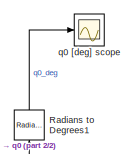
[diagram: root canvas - part 1/2, top center region]
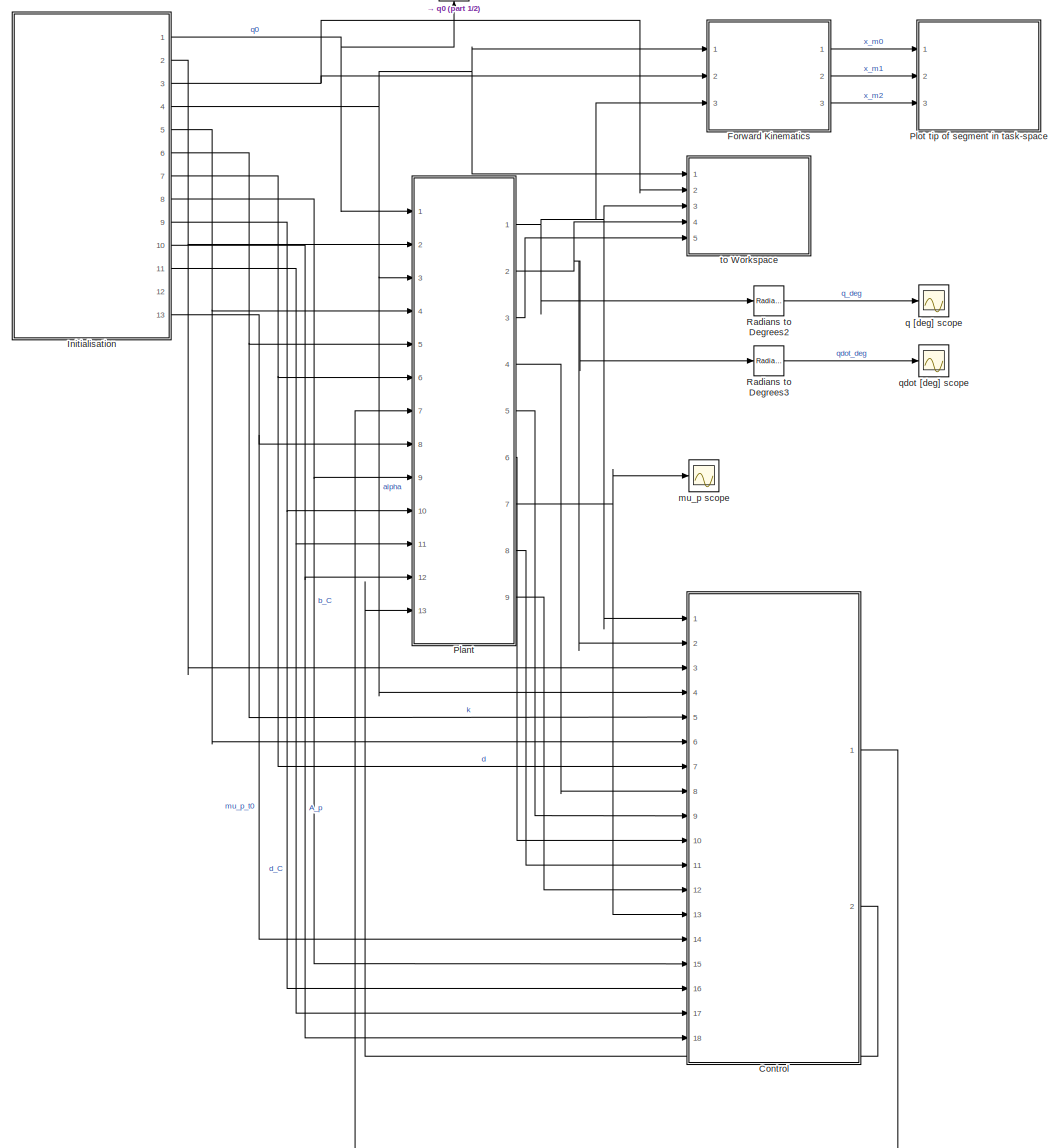
[diagram: root canvas - part 2/2, most of the canvas]
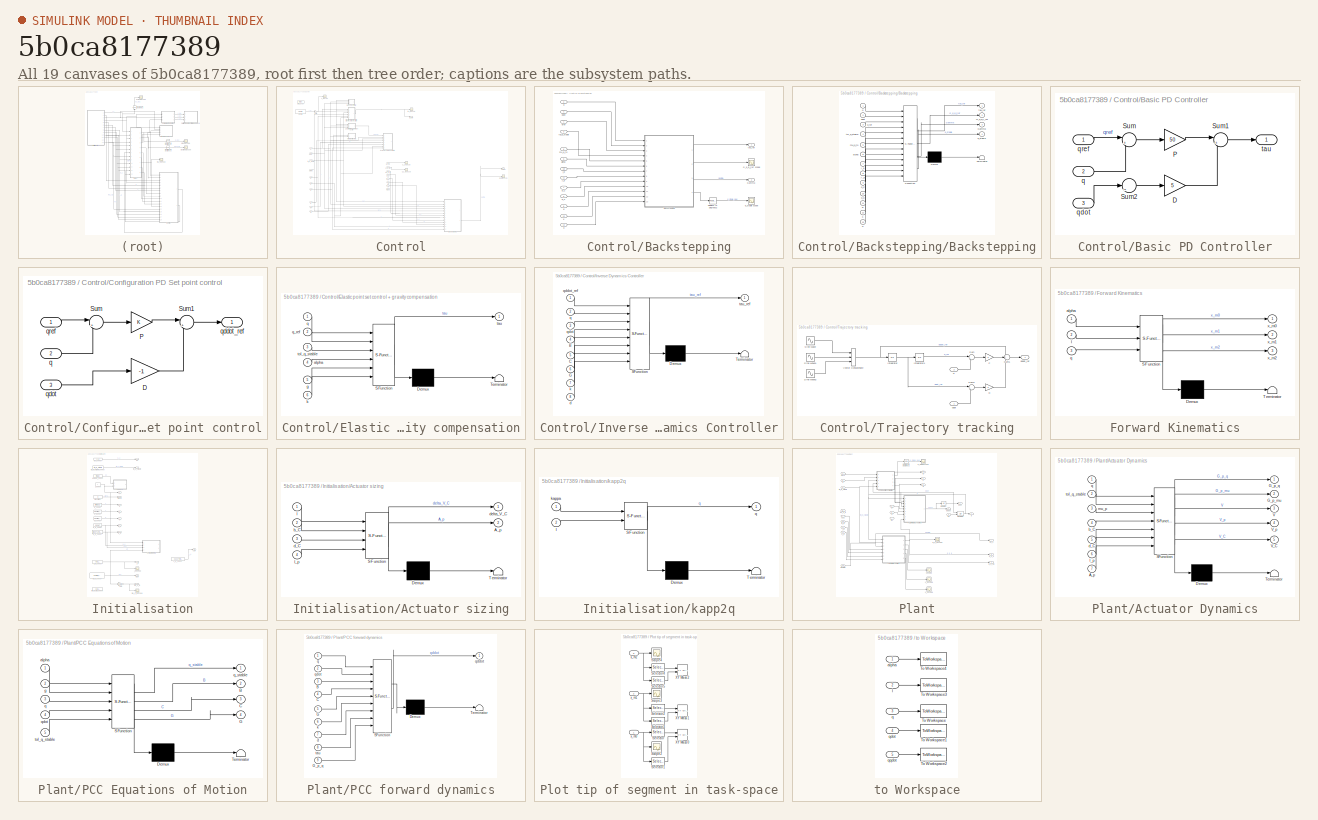
[diagram: thumbnail index - all 19 canvases of the model, root first then tree order]
MODEL slx_5b0ca8177389
KIND model
CONFIG AbsTol = auto
CONFIG EnableMultiTasking = off
CONFIG FixedStep = auto
CONFIG MaxStep = 0.001
CONFIG MinStep = auto
CONFIG RelTol = 1e-3
CONFIG SampleTimeConstraint = Unconstrained
CONFIG SolverName = VariableStepAuto
CONFIG StartTime = 0.0
CONFIG StopTime = 70
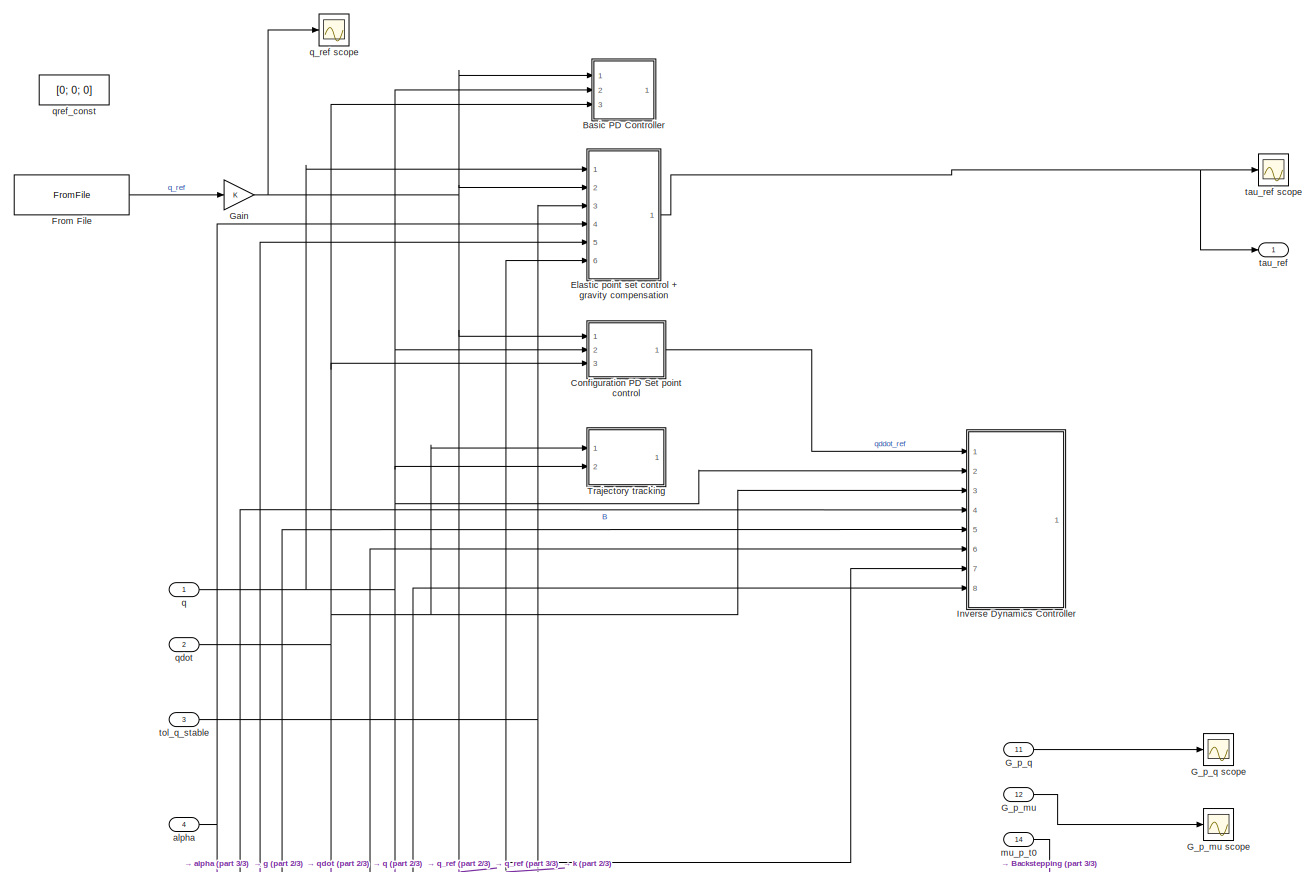
[diagram: Control - part 1/3, top left region]
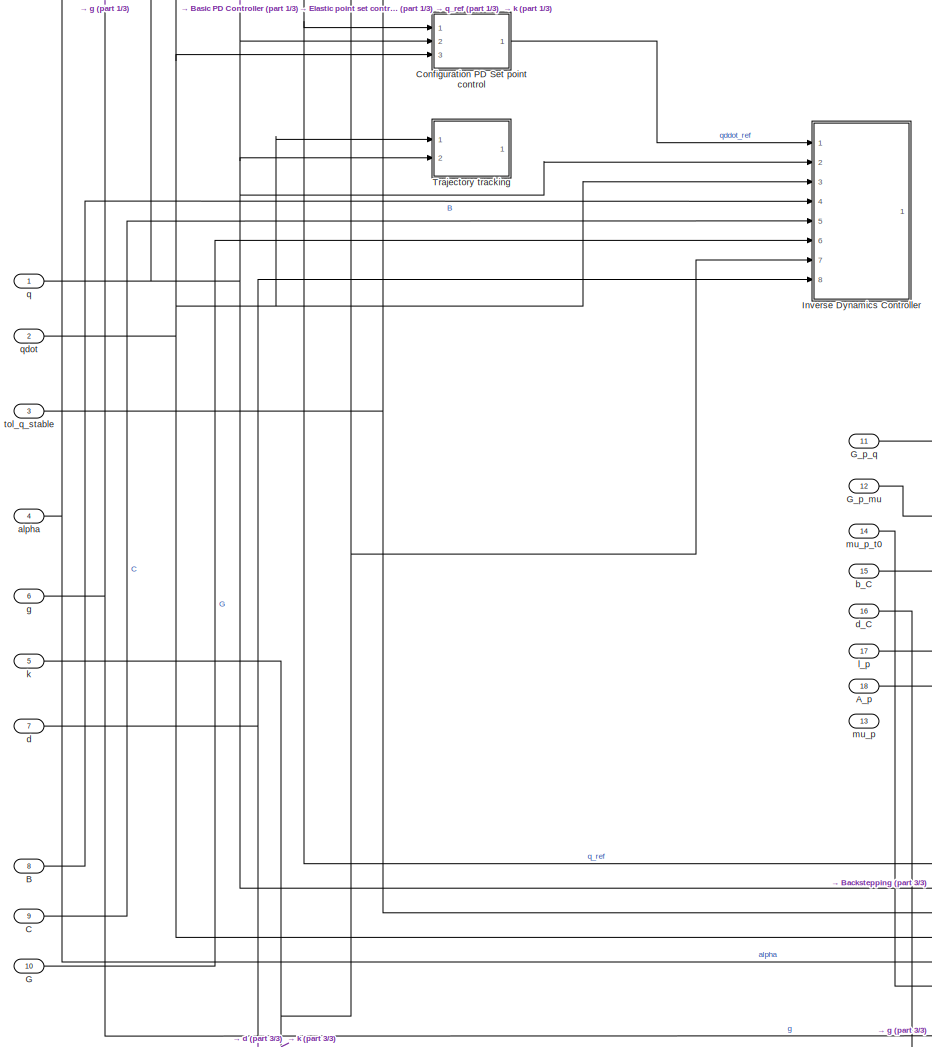
[diagram: Control - part 2/3, middle left region]
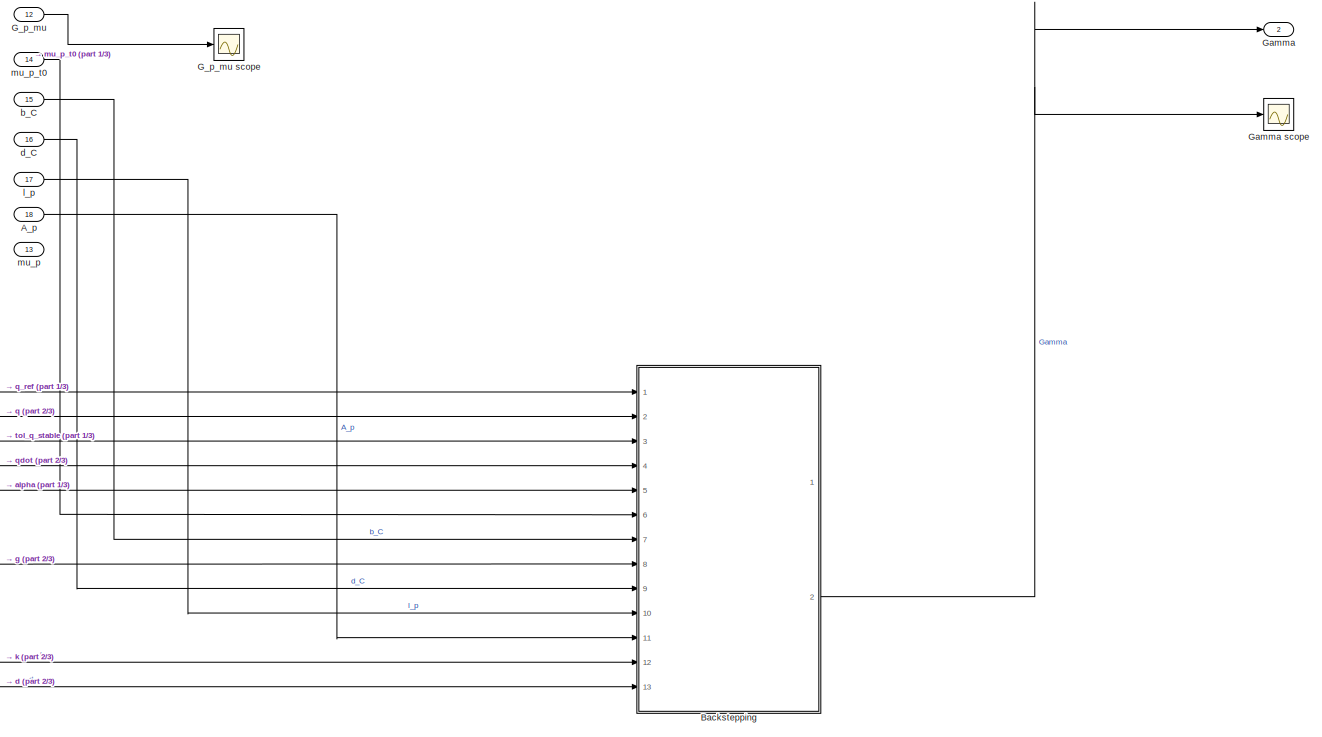
[diagram: Control - part 3/3, bottom right region]
BLOCK [SubSystem] Control
  Ports = [18, 2]
  RequestExecContextInheritance = off
BLOCK [Inport] Control/A_p
  Port = 18
BLOCK [Inport] Control/B
  Port = 8
BLOCK [SubSystem] Control/Backstepping
  Ports = [13, 2]
  RequestExecContextInheritance = off
BLOCK [Inport] Control/Backstepping/A_p
  Port = 11
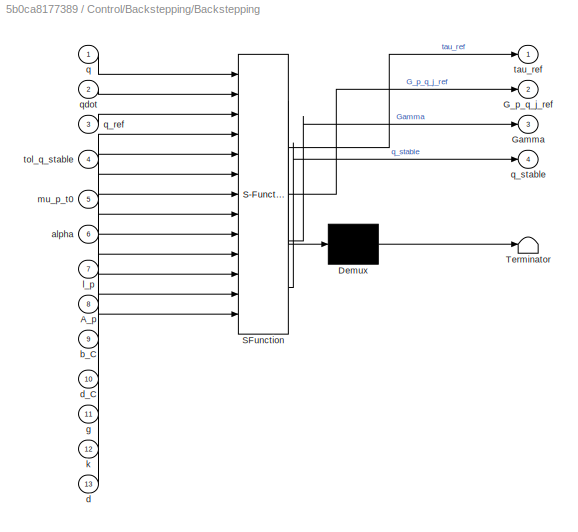
BLOCK [SubSystem] Control/Backstepping/Backstepping
  ErrorFcn = Stateflow.Translate.translate
  PermitHierarchicalResolution = ExplicitOnly
  Ports = [13, 4]
  RTWSystemCode = Reusable function
  RequestExecContextInheritance = off
  SFBlockType = MATLAB Function
  TreatAsAtomicUnit = on
BLOCK [Demux] Control/Backstepping/Backstepping/ Demux 
  Outputs = 1
  Ports = [1, 1]
BLOCK [S-Function] Control/Backstepping/Backstepping/ SFunction 
  EnableBusSupport = on
  FunctionName = sf_sfun
  PortCounts = [13 5]
  Ports = [13, 5]
  SFcnIsStateOwnerBlock = off
  SFunctionDeploymentMode = off
  Tag = Stateflow S-Function 12
BLOCK [Terminator] Control/Backstepping/Backstepping/ Terminator 
BLOCK [Inport] Control/Backstepping/Backstepping/A_p
  Port = 8
BLOCK [Outport] Control/Backstepping/Backstepping/G_p_q_j_ref
  Port = 2
BLOCK [Outport] Control/Backstepping/Backstepping/Gamma
  Port = 3
BLOCK [Inport] Control/Backstepping/Backstepping/alpha
  Port = 6
BLOCK [Inport] Control/Backstepping/Backstepping/b_C
  Port = 9
BLOCK [Inport] Control/Backstepping/Backstepping/d
  Port = 13
BLOCK [Inport] Control/Backstepping/Backstepping/d_C
  Port = 10
BLOCK [Inport] Control/Backstepping/Backstepping/g
  Port = 11
BLOCK [Inport] Control/Backstepping/Backstepping/k
  Port = 12
BLOCK [Inport] Control/Backstepping/Backstepping/l_p
  Port = 7
BLOCK [Inport] Control/Backstepping/Backstepping/mu_p_t0
  Port = 5
BLOCK [Inport] Control/Backstepping/Backstepping/q
BLOCK [Inport] Control/Backstepping/Backstepping/q_ref
  Port = 3
BLOCK [Outport] Control/Backstepping/Backstepping/q_stable
  Port = 4
BLOCK [Inport] Control/Backstepping/Backstepping/qdot
  Port = 2
BLOCK [Outport] Control/Backstepping/Backstepping/tau_ref
BLOCK [Inport] Control/Backstepping/Backstepping/tol_q_stable
  Port = 4
BLOCK [Scope] Control/Backstepping/G_p_q_j_ref scope
  Floating = off
  NumInputPorts = 1
  Ports = [1]
  ScopeSpecificationString = Simulink.scopes.TimeScopeBlockCfg('CurrentConfiguration', extmgr.ConfigurationSet(extmgr.Configuration('Core','General UI',true),extmgr.Configuration('Core','Source UI',true),extmgr.Configuration('Sources','WiredSimulink',true,'DataLoggingVariableName','ScopeData4'),extmgr.Configuration('Visuals','Time Domain',true,'SerializedDisplays',{struct('MinYLimReal','-1.41052','MaxYLimReal','0.97367','YLab...<+1602ch>
BLOCK [Outport] Control/Backstepping/Gamma
  Port = 2
BLOCK [Reference] Control/Backstepping/Radians to Degrees2  REF=simulink_extras/Transformations/Radians
to Degrees
  Ports = [1, 1]
  SourceBlock = simulink_extras/Transformations/Radians\nto Degrees
  SourceProductBaseCode = SL
  SourceType = RadiansToDegrees
BLOCK [Inport] Control/Backstepping/alpha
  Port = 5
BLOCK [Inport] Control/Backstepping/b_C
  Port = 7
BLOCK [Inport] Control/Backstepping/d
  Port = 13
BLOCK [Inport] Control/Backstepping/d_C
  Port = 9
BLOCK [Inport] Control/Backstepping/g
  Port = 8
BLOCK [Inport] Control/Backstepping/k
  Port = 12
BLOCK [Inport] Control/Backstepping/l_p
  Port = 10
BLOCK [Inport] Control/Backstepping/mu_p_t0
  Port = 6
BLOCK [Inport] Control/Backstepping/q
  Port = 2
BLOCK [Scope] Control/Backstepping/q_stable scope
  Floating = off
  NumInputPorts = 1
  Ports = [1]
  ScopeSpecificationString = Simulink.scopes.TimeScopeBlockCfg('CurrentConfiguration', extmgr.ConfigurationSet(extmgr.Configuration('Core','General UI',true),extmgr.Configuration('Core','Source UI',true),extmgr.Configuration('Sources','WiredSimulink',true,'DataLoggingVariableName','ScopeData1'),extmgr.Configuration('Visuals','Time Domain',true,'SerializedDisplays',{struct('MinYLimReal','-222.20709','MaxYLimReal','520.33624','...<+1493ch>
BLOCK [Inport] Control/Backstepping/qdot
  Port = 4
BLOCK [Inport] Control/Backstepping/qref
BLOCK [Outport] Control/Backstepping/tau_ref
BLOCK [Inport] Control/Backstepping/tol_q_stable
  Port = 3
BLOCK [SubSystem] Control/Basic PD Controller
  Commented = on
  Ports = [3, 1]
  RequestExecContextInheritance = off
BLOCK [Gain] Control/Basic PD Controller/D
  Gain = 5
BLOCK [Gain] Control/Basic PD Controller/P
  Gain = 50
BLOCK [Sum] Control/Basic PD Controller/Sum
  Inputs = |+-
  Ports = [2, 1]
BLOCK [Sum] Control/Basic PD Controller/Sum1
  Inputs = |++
  Ports = [2, 1]
BLOCK [Sum] Control/Basic PD Controller/Sum2
  Inputs = ||-
  Ports = [1, 1]
BLOCK [Inport] Control/Basic PD Controller/q
  Port = 2
BLOCK [Inport] Control/Basic PD Controller/qdot
  Port = 3
BLOCK [Inport] Control/Basic PD Controller/qref
BLOCK [Outport] Control/Basic PD Controller/tau
BLOCK [Inport] Control/C
  Port = 9
BLOCK [SubSystem] Control/Configuration PD Set point control
  Commented = on
  Ports = [3, 1]
  RequestExecContextInheritance = off
BLOCK [Gain] Control/Configuration PD Set point control/D
  Gain = -1
BLOCK [Gain] Control/Configuration PD Set point control/P
BLOCK [Sum] Control/Configuration PD Set point control/Sum
  Inputs = |+-
  Ports = [2, 1]
BLOCK [Sum] Control/Configuration PD Set point control/Sum1
  Inputs = |++
  Ports = [2, 1]
BLOCK [Inport] Control/Configuration PD Set point control/q
  Port = 2
BLOCK [Outport] Control/Configuration PD Set point control/qddot_ref
BLOCK [Inport] Control/Configuration PD Set point control/qdot
  Port = 3
BLOCK [Inport] Control/Configuration PD Set point control/qref
BLOCK [SubSystem] Control/Elastic point set control + gravity compensation
  ErrorFcn = Stateflow.Translate.translate
  PermitHierarchicalResolution = ExplicitOnly
  Ports = [6, 1]
  RequestExecContextInheritance = off
  SFBlockType = MATLAB Function
  TreatAsAtomicUnit = on
BLOCK [Demux] Control/Elastic point set control + gravity compensation/ Demux 
  Outputs = 1
  Ports = [1, 1]
BLOCK [S-Function] Control/Elastic point set control + gravity compensation/ SFunction 
  EnableBusSupport = on
  FunctionName = sf_sfun
  PortCounts = [6 2]
  Ports = [6, 2]
  SFcnIsStateOwnerBlock = off
  SFunctionDeploymentMode = off
  Tag = Stateflow S-Function 6
BLOCK [Terminator] Control/Elastic point set control + gravity compensation/ Terminator 
BLOCK [Inport] Control/Elastic point set control + gravity compensation/alpha
  Port = 4
BLOCK [Inport] Control/Elastic point set control + gravity compensation/g
  Port = 5
BLOCK [Inport] Control/Elastic point set control + gravity compensation/k
  Port = 6
BLOCK [Inport] Control/Elastic point set control + gravity compensation/q
BLOCK [Inport] Control/Elastic point set control + gravity compensation/q_ref
  Port = 2
BLOCK [Outport] Control/Elastic point set control + gravity compensation/tau
BLOCK [Inport] Control/Elastic point set control + gravity compensation/tol_q_stable
  Port = 3
BLOCK [FromFile] Control/From File
  FileName = data\in_qref_ts.mat
  InterpolationWithinTimeRange = Zero order hold
  SampleTime = 0
BLOCK [Inport] Control/G
  Port = 10
BLOCK [Inport] Control/G_p_mu
  Port = 12
BLOCK [Scope] Control/G_p_mu scope
  Floating = off
  NumInputPorts = 1
  Ports = [1]
  ScopeSpecificationString = Simulink.scopes.TimeScopeBlockCfg('CurrentConfiguration', extmgr.ConfigurationSet(extmgr.Configuration('Core','General UI',true),extmgr.Configuration('Core','Source UI',true),extmgr.Configuration('Sources','WiredSimulink',true,'DataLoggingVariableName','ScopeData3'),extmgr.Configuration('Visuals','Time Domain',true,'SerializedDisplays',{struct('MinYLimReal','-300.6051','MaxYLimReal','95.99191','YL...<+1621ch>
BLOCK [Inport] Control/G_p_q
  Port = 11
BLOCK [Scope] Control/G_p_q scope
  Floating = off
  NumInputPorts = 1
  Ports = [1]
  ScopeSpecificationString = Simulink.scopes.TimeScopeBlockCfg('CurrentConfiguration', extmgr.ConfigurationSet(extmgr.Configuration('Core','General UI',true),extmgr.Configuration('Core','Source UI',true),extmgr.Configuration('Sources','WiredSimulink',true,'DataLoggingVariableName','ScopeData2'),extmgr.Configuration('Visuals','Time Domain',true,'SerializedDisplays',{struct('MinYLimReal','-20.65925','MaxYLimReal','11.64175','YL...<+1584ch>
BLOCK [Gain] Control/Gain
BLOCK [Outport] Control/Gamma
  Port = 2
BLOCK [Scope] Control/Gamma scope
  Floating = off
  NumInputPorts = 1
  Ports = [1]
  ScopeSpecificationString = Simulink.scopes.TimeScopeBlockCfg('CurrentConfiguration', extmgr.ConfigurationSet(extmgr.Configuration('Core','General UI',true),extmgr.Configuration('Core','Source UI',true),extmgr.Configuration('Sources','WiredSimulink',true,'DataLoggingVariableName','ScopeData3'),extmgr.Configuration('Visuals','Time Domain',true,'SerializedDisplays',{struct('MinYLimReal','0.04448','MaxYLimReal','0.22674','YLabe...<+1629ch>
BLOCK [SubSystem] Control/Inverse Dynamics Controller
  Commented = on
  ErrorFcn = Stateflow.Translate.translate
  PermitHierarchicalResolution = ExplicitOnly
  Ports = [8, 1]
  RequestExecContextInheritance = off
  SFBlockType = MATLAB Function
  TreatAsAtomicUnit = on
BLOCK [Demux] Control/Inverse Dynamics Controller/ Demux 
  Outputs = 1
  Ports = [1, 1]
BLOCK [S-Function] Control/Inverse Dynamics Controller/ SFunction 
  EnableBusSupport = on
  FunctionName = sf_sfun
  PortCounts = [8 2]
  Ports = [8, 2]
  SFcnIsStateOwnerBlock = off
  SFunctionDeploymentMode = off
  Tag = Stateflow S-Function 5
BLOCK [Terminator] Control/Inverse Dynamics Controller/ Terminator 
BLOCK [Inport] Control/Inverse Dynamics Controller/B
  Port = 4
BLOCK [Inport] Control/Inverse Dynamics Controller/C
  Port = 5
BLOCK [Inport] Control/Inverse Dynamics Controller/G
  Port = 6
BLOCK [Inport] Control/Inverse Dynamics Controller/d
  Port = 8
BLOCK [Inport] Control/Inverse Dynamics Controller/k
  Port = 7
BLOCK [Inport] Control/Inverse Dynamics Controller/q
  Port = 2
BLOCK [Inport] Control/Inverse Dynamics Controller/qddot_ref
BLOCK [Inport] Control/Inverse Dynamics Controller/qdot
  Port = 3
BLOCK [Outport] Control/Inverse Dynamics Controller/tau_ref
BLOCK [SubSystem] Control/Trajectory tracking
  Commented = on
  Ports = [2, 1]
  RequestExecContextInheritance = off
BLOCK [Gain] Control/Trajectory tracking/D
BLOCK [Integrator] Control/Trajectory tracking/Integrator
  InitialCondition = [-0.25, -0.5, -1]
  Ports = [1, 1]
BLOCK [Integrator] Control/Trajectory tracking/Integrator1
  Ports = [1, 1]
BLOCK [Gain] Control/Trajectory tracking/P
BLOCK [Sin] Control/Trajectory tracking/Sine Wave
  Amplitude = 0.25
  Ports = [0, 1]
  SampleTime = 0
  Samples = 100
BLOCK [Sin] Control/Trajectory tracking/Sine Wave1
  Amplitude = 0.5
  Ports = [0, 1]
  SampleTime = 0
BLOCK [Sin] Control/Trajectory tracking/Sine Wave2
  Ports = [0, 1]
  SampleTime = 0
BLOCK [Sum] Control/Trajectory tracking/Sum
  Inputs = |+-
  Ports = [2, 1]
BLOCK [Sum] Control/Trajectory tracking/Sum1
  Inputs = +++
  Ports = [3, 1]
BLOCK [Sum] Control/Trajectory tracking/Sum2
  Inputs = |+-
  Ports = [2, 1]
BLOCK [Concatenate] Control/Trajectory tracking/Vector Concatenate
  NumInputs = 3
  Ports = [3, 1]
BLOCK [Inport] Control/Trajectory tracking/q
  Port = 2
BLOCK [Outport] Control/Trajectory tracking/qddot_ref
BLOCK [Inport] Control/Trajectory tracking/qdot
BLOCK [Inport] Control/alpha
  Port = 4
BLOCK [Inport] Control/b_C
  Port = 15
BLOCK [Inport] Control/d
  Port = 7
BLOCK [Inport] Control/d_C
  Port = 16
BLOCK [Inport] Control/g
  Port = 6
BLOCK [Inport] Control/k
  Port = 5
BLOCK [Inport] Control/l_p
  Port = 17
BLOCK [Inport] Control/mu_p
  Port = 13
BLOCK [Inport] Control/mu_p_t0
  Port = 14
BLOCK [Inport] Control/q
BLOCK [Scope] Control/q_ref scope
  Floating = off
  NumInputPorts = 1
  Ports = [1]
  ScopeSpecificationString = Simulink.scopes.TimeScopeBlockCfg('CurrentConfiguration', extmgr.ConfigurationSet(extmgr.Configuration('Core','General UI',true),extmgr.Configuration('Core','Source UI',true),extmgr.Configuration('Sources','WiredSimulink',true,'DataLoggingVariableName','ScopeData2'),extmgr.Configuration('Visuals','Time Domain',true,'SerializedDisplays',{struct('MinYLimReal','-2.16748','MaxYLimReal','0.65777','YLab...<+1637ch>
BLOCK [Inport] Control/qdot
  Port = 2
BLOCK [Constant] Control/qref_const
  Value = [0; 0; 0]
BLOCK [Outport] Control/tau_ref
BLOCK [Scope] Control/tau_ref scope
  Floating = off
  NumInputPorts = 1
  Ports = [1]
  ScopeSpecificationString = Simulink.scopes.TimeScopeBlockCfg('CurrentConfiguration', extmgr.ConfigurationSet(extmgr.Configuration('Core','General UI',true),extmgr.Configuration('Core','Source UI',true),extmgr.Configuration('Sources','WiredSimulink',true,'DataLoggingVariableName','ScopeData4'),extmgr.Configuration('Visuals','Time Domain',true,'SerializedDisplays',{struct('MinYLimReal','-0.14254','MaxYLimReal','0.43804','YLab...<+1657ch>
BLOCK [Inport] Control/tol_q_stable
  Port = 3
BLOCK [SubSystem] Forward Kinematics
  ErrorFcn = Stateflow.Translate.translate
  PermitHierarchicalResolution = ExplicitOnly
  Ports = [3, 3]
  RequestExecContextInheritance = off
  SFBlockType = MATLAB Function
  TreatAsAtomicUnit = on
BLOCK [Demux] Forward Kinematics/ Demux 
  Outputs = 1
  Ports = [1, 1]
BLOCK [S-Function] Forward Kinematics/ SFunction 
  EnableBusSupport = on
  FunctionName = sf_sfun
  PortCounts = [3 4]
  Ports = [3, 4]
  SFcnIsStateOwnerBlock = off
  SFunctionDeploymentMode = off
  Tag = Stateflow S-Function 1
BLOCK [Terminator] Forward Kinematics/ Terminator 
BLOCK [Inport] Forward Kinematics/alpha
BLOCK [Inport] Forward Kinematics/l
  Port = 2
BLOCK [Inport] Forward Kinematics/q
  Port = 3
BLOCK [Outport] Forward Kinematics/x_m0
BLOCK [Outport] Forward Kinematics/x_m1
  Port = 2
BLOCK [Outport] Forward Kinematics/x_m2
  Port = 3
BLOCK [SubSystem] Initialisation
  Ports = [0, 13]
  RequestExecContextInheritance = off
BLOCK [Outport] Initialisation/A_p
  Port = 10
BLOCK [Constant] Initialisation/A_p_const
  Value = 0.00079*[1; 1; 1; 1; 1; 1]
BLOCK [SubSystem] Initialisation/Actuator sizing
  ErrorFcn = Stateflow.Translate.translate
  PermitHierarchicalResolution = ExplicitOnly
  Ports = [4, 2]
  RequestExecContextInheritance = off
  SFBlockType = MATLAB Function
  TreatAsAtomicUnit = on
BLOCK [Demux] Initialisation/Actuator sizing/ Demux 
  Outputs = 1
  Ports = [1, 1]
BLOCK [S-Function] Initialisation/Actuator sizing/ SFunction 
  EnableBusSupport = on
  FunctionName = sf_sfun
  PortCounts = [4 3]
  Ports = [4, 3]
  SFcnIsStateOwnerBlock = off
  SFunctionDeploymentMode = off
  Tag = Stateflow S-Function 8
BLOCK [Terminator] Initialisation/Actuator sizing/ Terminator 
BLOCK [Outport] Initialisation/Actuator sizing/A_p
  Port = 2
BLOCK [Inport] Initialisation/Actuator sizing/b_C
  Port = 2
BLOCK [Inport] Initialisation/Actuator sizing/d_C
  Port = 3
BLOCK [Outport] Initialisation/Actuator sizing/delta_V_C
BLOCK [Inport] Initialisation/Actuator sizing/l
BLOCK [Inport] Initialisation/Actuator sizing/l_p
  Port = 4
BLOCK [Gain] Initialisation/Gain
  Gain = 0.25
BLOCK [Outport] Initialisation/alpha
  Port = 4
BLOCK [Constant] Initialisation/alpha [rad]
  Value = 0
BLOCK [Outport] Initialisation/b_C
  Port = 8
BLOCK [Constant] Initialisation/b_C_const
  Value = 0.0087
BLOCK [Outport] Initialisation/d
  Port = 7
BLOCK [Outport] Initialisation/d_C
  Port = 9
BLOCK [Constant] Initialisation/d_C_const
  Value = [0.00714; 0.02019]
BLOCK [Constant] Initialisation/d_const
  Value = 0.01*[1; 1; 1]
BLOCK [Outport] Initialisation/g
  Port = 5
BLOCK [Constant] Initialisation/g_const
  Value = 1*[0; 9.81]
BLOCK [Outport] Initialisation/k
  Port = 6
BLOCK [Constant] Initialisation/k_konst
  Value = 0.01*[1; 1; 1]
BLOCK [SubSystem] Initialisation/kapp2q
  Commented = on
  ErrorFcn = Stateflow.Translate.translate
  PermitHierarchicalResolution = ExplicitOnly
  Ports = [2, 1]
  RequestExecContextInheritance = off
  SFBlockType = MATLAB Function
  TreatAsAtomicUnit = on
BLOCK [Demux] Initialisation/kapp2q/ Demux 
  Outputs = 1
  Ports = [1, 1]
BLOCK [S-Function] Initialisation/kapp2q/ SFunction 
  EnableBusSupport = on
  FunctionName = sf_sfun
  PortCounts = [2 2]
  Ports = [2, 2]
  SFcnIsStateOwnerBlock = off
  SFunctionDeploymentMode = off
  Tag = Stateflow S-Function 3
BLOCK [Terminator] Initialisation/kapp2q/ Terminator 
BLOCK [Inport] Initialisation/kapp2q/kappa
BLOCK [Inport] Initialisation/kapp2q/l
  Port = 2
BLOCK [Outport] Initialisation/kapp2q/q
BLOCK [Constant] Initialisation/kappa_const
  Commented = on
  Value = [4; -3; 2]
BLOCK [Outport] Initialisation/l
  Port = 3
BLOCK [Constant] Initialisation/l_const
  Value = l
BLOCK [Outport] Initialisation/l_p
  Port = 11
BLOCK [Scope] Initialisation/l_p Scope
  Floating = off
  NumInputPorts = 1
  Ports = [1]
  ScopeSpecificationString = Simulink.scopes.TimeScopeBlockCfg('CurrentConfiguration', extmgr.ConfigurationSet(extmgr.Configuration('Core','General UI',true),extmgr.Configuration('Core','Source UI',true),extmgr.Configuration('Sources','WiredSimulink',true,'DataLoggingVariableName','ScopeData2'),extmgr.Configuration('Visuals','Time Domain',true,'SerializedDisplays',{struct('MinYLimReal','0.09','MaxYLimReal','0.11','YLabelReal'...<+1682ch>
BLOCK [Constant] Initialisation/l_p_const
  Value = 0.5*[1; 1; 1; 1; 1; 1]
BLOCK [Outport] Initialisation/m_p
  Port = 12
BLOCK [Constant] Initialisation/m_p_const
  Value = 0.19*[1; 1; 1; 1; 1; 1]
BLOCK [Outport] Initialisation/mu_p_t0
  Port = 13
BLOCK [Scope] Initialisation/mu_p_t0 Scope
  Floating = off
  NumInputPorts = 1
  Ports = [1]
  ScopeSpecificationString = Simulink.scopes.TimeScopeBlockCfg('CurrentConfiguration', extmgr.ConfigurationSet(extmgr.Configuration('Core','General UI',true),extmgr.Configuration('Core','Source UI',true),extmgr.Configuration('Sources','WiredSimulink',true,'DataLoggingVariableName','ScopeData1'),extmgr.Configuration('Visuals','Time Domain',true,'SerializedDisplays',{struct('MinYLimReal','0.07','MaxYLimReal','0.09','YLabelReal'...<+1687ch>
BLOCK [Constant] Initialisation/mu_p_t0_const
  Value = 0.2*[1; 1; 1; 1; 1; 1]
BLOCK [Outport] Initialisation/q0
BLOCK [Constant] Initialisation/q0_const
  Value = q_eq
BLOCK [Outport] Initialisation/tol_q_stable
  Port = 2
BLOCK [Constant] Initialisation/tol_q_stable_const
  Value = tol_q_stable
BLOCK [SubSystem] Plant
  Ports = [13, 9]
  RequestExecContextInheritance = off
BLOCK [Inport] Plant/A_p
  Port = 12
BLOCK [SubSystem] Plant/Actuator Dynamics
  ErrorFcn = Stateflow.Translate.translate
  PermitHierarchicalResolution = ExplicitOnly
  Ports = [7, 5]
  RequestExecContextInheritance = off
  SFBlockType = MATLAB Function
  TreatAsAtomicUnit = on
BLOCK [Demux] Plant/Actuator Dynamics/ Demux 
  Outputs = 1
  Ports = [1, 1]
BLOCK [S-Function] Plant/Actuator Dynamics/ SFunction 
  EnableBusSupport = on
  FunctionName = sf_sfun
  PortCounts = [7 6]
  Ports = [7, 6]
  SFcnIsStateOwnerBlock = off
  SFunctionDeploymentMode = off
  Tag = Stateflow S-Function 7
BLOCK [Terminator] Plant/Actuator Dynamics/ Terminator 
BLOCK [Inport] Plant/Actuator Dynamics/A_p
  Port = 7
BLOCK [Outport] Plant/Actuator Dynamics/G_p_mu
  Port = 2
BLOCK [Outport] Plant/Actuator Dynamics/G_p_q
BLOCK [Outport] Plant/Actuator Dynamics/V
  Port = 3
BLOCK [Outport] Plant/Actuator Dynamics/V_C
  Port = 5
BLOCK [Outport] Plant/Actuator Dynamics/V_p
  Port = 4
BLOCK [Inport] Plant/Actuator Dynamics/b_C
  Port = 4
BLOCK [Inport] Plant/Actuator Dynamics/d_C
  Port = 5
BLOCK [Inport] Plant/Actuator Dynamics/l_p
  Port = 6
BLOCK [Inport] Plant/Actuator Dynamics/mu_p
  Port = 3
BLOCK [Inport] Plant/Actuator Dynamics/q
BLOCK [Inport] Plant/Actuator Dynamics/tol_q_stable
  Port = 2
BLOCK [Outport] Plant/B
  Port = 4
BLOCK [Outport] Plant/C
  Port = 5
BLOCK [Outport] Plant/G
  Port = 6
BLOCK [Outport] Plant/G_p_mu
  Port = 9
BLOCK [Outport] Plant/G_p_q
  Port = 8
BLOCK [Scope] Plant/G_p_q scope
  Floating = off
  NumInputPorts = 1
  Ports = [1]
  ScopeSpecificationString = Simulink.scopes.TimeScopeBlockCfg('CurrentConfiguration', extmgr.ConfigurationSet(extmgr.Configuration('Core','General UI',true),extmgr.Configuration('Core','Source UI',true),extmgr.Configuration('Sources','WiredSimulink',true,'DataLoggingVariableName','ScopeData1'),extmgr.Configuration('Visuals','Time Domain',true,'SerializedDisplays',{struct('MinYLimReal','-0.43557','MaxYLimReal','0.1989','YLabe...<+1527ch>
BLOCK [Inport] Plant/Gamma
  Port = 13
BLOCK [Integrator] Plant/Integrator
  InitialCondition = [0; 0; 0]
  Ports = [1, 1]
BLOCK [Integrator] Plant/Integrator1
  InitialConditionSource = external
  Ports = [2, 1]
BLOCK [SubSystem] Plant/PCC Equations of Motion
  ErrorFcn = Stateflow.Translate.translate
  PermitHierarchicalResolution = ExplicitOnly
  Ports = [5, 4]
  RequestExecContextInheritance = off
  SFBlockType = MATLAB Function
  TreatAsAtomicUnit = on
BLOCK [Demux] Plant/PCC Equations of Motion/ Demux 
  Outputs = 1
  Ports = [1, 1]
BLOCK [S-Function] Plant/PCC Equations of Motion/ SFunction 
  EnableBusSupport = on
  FunctionName = sf_sfun
  PortCounts = [5 5]
  Ports = [5, 5]
  SFcnIsStateOwnerBlock = off
  SFunctionDeploymentMode = off
  Tag = Stateflow S-Function 4
BLOCK [Terminator] Plant/PCC Equations of Motion/ Terminator 
BLOCK [Outport] Plant/PCC Equations of Motion/B
  Port = 2
BLOCK [Outport] Plant/PCC Equations of Motion/C
  Port = 3
BLOCK [Outport] Plant/PCC Equations of Motion/G
  Port = 4
BLOCK [Inport] Plant/PCC Equations of Motion/alpha
BLOCK [Inport] Plant/PCC Equations of Motion/g
  Port = 2
BLOCK [Inport] Plant/PCC Equations of Motion/q
  Port = 3
BLOCK [Outport] Plant/PCC Equations of Motion/q_stable
BLOCK [Inport] Plant/PCC Equations of Motion/qdot
  Port = 4
BLOCK [Inport] Plant/PCC Equations of Motion/tol_q_stable
  Port = 5
BLOCK [SubSystem] Plant/PCC forward dynamics
  ErrorFcn = Stateflow.Translate.translate
  PermitHierarchicalResolution = ExplicitOnly
  Ports = [9, 1]
  RequestExecContextInheritance = off
  SFBlockType = MATLAB Function
  TreatAsAtomicUnit = on
BLOCK [Demux] Plant/PCC forward dynamics/ Demux 
  Outputs = 1
  Ports = [1, 1]
BLOCK [S-Function] Plant/PCC forward dynamics/ SFunction 
  EnableBusSupport = on
  FunctionName = sf_sfun
  PortCounts = [9 2]
  Ports = [9, 2]
  SFcnIsStateOwnerBlock = off
  SFunctionDeploymentMode = off
  Tag = Stateflow S-Function 2
BLOCK [Terminator] Plant/PCC forward dynamics/ Terminator 
BLOCK [Inport] Plant/PCC forward dynamics/B
  Port = 3
BLOCK [Inport] Plant/PCC forward dynamics/C
  Port = 4
BLOCK [Inport] Plant/PCC forward dynamics/G
  Port = 5
BLOCK [Inport] Plant/PCC forward dynamics/G_p_q
  Port = 9
BLOCK [Inport] Plant/PCC forward dynamics/d
  Port = 7
BLOCK [Inport] Plant/PCC forward dynamics/k
  Port = 6
BLOCK [Inport] Plant/PCC forward dynamics/q
BLOCK [Outport] Plant/PCC forward dynamics/qddot
BLOCK [Inport] Plant/PCC forward dynamics/qdot
  Port = 2
BLOCK [Inport] Plant/PCC forward dynamics/tau
  Port = 8
BLOCK [Reference] Plant/Radians to Degrees2  REF=simulink_extras/Transformations/Radians
to Degrees
  Ports = [1, 1]
  SourceBlock = simulink_extras/Transformations/Radians\nto Degrees
  SourceProductBaseCode = SL
  SourceType = RadiansToDegrees
BLOCK [Scope] Plant/V scope
  Floating = off
  NumInputPorts = 1
  Ports = [1]
  ScopeSpecificationString = Simulink.scopes.TimeScopeBlockCfg('CurrentConfiguration', extmgr.ConfigurationSet(extmgr.Configuration('Core','General UI',true),extmgr.Configuration('Core','Source UI',true),extmgr.Configuration('Sources','WiredSimulink',true,'DataLoggingVariableName','ScopeData2'),extmgr.Configuration('Visuals','Time Domain',true,'SerializedDisplays',{struct('MinYLimReal','0.00007','MaxYLimReal','0.00018','YLabe...<+1706ch>
BLOCK [Scope] Plant/V_C scope
  Floating = off
  NumInputPorts = 1
  Ports = [1]
  ScopeSpecificationString = Simulink.scopes.TimeScopeBlockCfg('CurrentConfiguration', extmgr.ConfigurationSet(extmgr.Configuration('Core','General UI',true),extmgr.Configuration('Core','Source UI',true),extmgr.Configuration('Sources','WiredSimulink',true,'DataLoggingVariableName','ScopeData4'),extmgr.Configuration('Visuals','Time Domain',true,'SerializedDisplays',{struct('MinYLimReal','-0.00004','MaxYLimReal','0.00006','YLab...<+1701ch>
BLOCK [Scope] Plant/V_p scope
  Floating = off
  NumInputPorts = 1
  Ports = [1]
  ScopeSpecificationString = Simulink.scopes.TimeScopeBlockCfg('CurrentConfiguration', extmgr.ConfigurationSet(extmgr.Configuration('Core','General UI',true),extmgr.Configuration('Core','Source UI',true),extmgr.Configuration('Sources','WiredSimulink',true,'DataLoggingVariableName','ScopeData3'),extmgr.Configuration('Visuals','Time Domain',true,'SerializedDisplays',{struct('MinYLimReal','0.00006','MaxYLimReal','0.00016','YLabe...<+1701ch>
BLOCK [Inport] Plant/alpha
  Port = 3
BLOCK [Inport] Plant/b_C
  Port = 9
BLOCK [Inport] Plant/d
  Port = 6
BLOCK [Inport] Plant/d_C
  Port = 10
BLOCK [Inport] Plant/g
  Port = 4
BLOCK [Inport] Plant/k
  Port = 5
BLOCK [Inport] Plant/l_p
  Port = 11
BLOCK [Outport] Plant/mu_p
  Port = 7
BLOCK [Inport] Plant/mu_p_t0
  Port = 8
BLOCK [Outport] Plant/q
BLOCK [Inport] Plant/q0
BLOCK [Scope] Plant/q_stable scope
  Floating = off
  NumInputPorts = 1
  Ports = [1]
  ScopeSpecificationString = Simulink.scopes.TimeScopeBlockCfg('CurrentConfiguration', extmgr.ConfigurationSet(extmgr.Configuration('Core','General UI',true),extmgr.Configuration('Core','Source UI',true),extmgr.Configuration('Sources','WiredSimulink',true,'DataLoggingVariableName','ScopeData6'),extmgr.Configuration('Visuals','Time Domain',true,'SerializedDisplays',{struct('MinYLimReal','-124.1875','MaxYLimReal','37.6875','YLa...<+1578ch>
BLOCK [Outport] Plant/qddot
  Port = 3
BLOCK [Outport] Plant/qdot
  Port = 2
BLOCK [Inport] Plant/tau
  Port = 7
BLOCK [Inport] Plant/tol_q_stable
  Port = 2
BLOCK [SubSystem] Plot tip of segment in task-space
  Ports = [3]
  RequestExecContextInheritance = off
BLOCK [Scope] Plot tip of segment in task-space/Scope2
  Floating = off
  NumInputPorts = 1
  Ports = [1]
  ScopeSpecificationString = Simulink.scopes.TimeScopeBlockCfg('CurrentConfiguration', extmgr.ConfigurationSet(extmgr.Configuration('Core','General UI',true),extmgr.Configuration('Core','Source UI',true),extmgr.Configuration('Sources','WiredSimulink',true,'DataLoggingVariableName','ScopeData1'),extmgr.Configuration('Visuals','Time Domain',true,'SerializedDisplays',{struct('MinYLimReal','-0.51135','MaxYLimReal','5.59884','YLab...<+1440ch>
BLOCK [Scope] Plot tip of segment in task-space/Scope3
  Floating = off
  NumInputPorts = 1
  Ports = [1]
  ScopeSpecificationString = Simulink.scopes.TimeScopeBlockCfg('CurrentConfiguration', extmgr.ConfigurationSet(extmgr.Configuration('Core','General UI',true),extmgr.Configuration('Core','Source UI',true),extmgr.Configuration('Sources','WiredSimulink',true,'DataLoggingVariableName','ScopeData1'),extmgr.Configuration('Visuals','Time Domain',true,'SerializedDisplays',{struct('MinYLimReal','-0.89914','MaxYLimReal','6.02375','YLab...<+1441ch>
BLOCK [Scope] Plot tip of segment in task-space/Scope4
  Floating = off
  NumInputPorts = 1
  Ports = [1]
  ScopeSpecificationString = Simulink.scopes.TimeScopeBlockCfg('CurrentConfiguration', extmgr.ConfigurationSet(extmgr.Configuration('Core','General UI',true),extmgr.Configuration('Core','Source UI',true),extmgr.Configuration('Sources','WiredSimulink',true,'DataLoggingVariableName','ScopeData2'),extmgr.Configuration('Visuals','Time Domain',true,'SerializedDisplays',{struct('MinYLimReal','-0.09267','MaxYLimReal','3.32699','YLab...<+1402ch>
BLOCK [Selector] Plot tip of segment in task-space/Selector
  IndexOptions = Index vector (dialog)
  Indices = [1]
  InputPortWidth = 2
  OutputSizes = 1
  Ports = [1, 1]
BLOCK [Selector] Plot tip of segment in task-space/Selector1
  IndexOptions = Index vector (dialog)
  Indices = [2]
  InputPortWidth = 2
  OutputSizes = 1
  Ports = [1, 1]
BLOCK [Selector] Plot tip of segment in task-space/Selector2
  IndexOptions = Index vector (dialog)
  Indices = [1]
  InputPortWidth = 2
  OutputSizes = 1
  Ports = [1, 1]
BLOCK [Selector] Plot tip of segment in task-space/Selector3
  IndexOptions = Index vector (dialog)
  Indices = [2]
  InputPortWidth = 2
  OutputSizes = 1
  Ports = [1, 1]
BLOCK [Selector] Plot tip of segment in task-space/Selector4
  IndexOptions = Index vector (dialog)
  Indices = [1]
  InputPortWidth = 2
  OutputSizes = 1
  Ports = [1, 1]
BLOCK [Selector] Plot tip of segment in task-space/Selector5
  IndexOptions = Index vector (dialog)
  Indices = [2]
  InputPortWidth = 2
  OutputSizes = 1
  Ports = [1, 1]
BLOCK [Reference] Plot tip of segment in task-space/XY Mass 0  REF=simulink/Sinks/XY Graph
  Ports = [2]
  SourceBlock = simulink/Sinks/XY Graph
  SourceProductBaseCode = SL
  SourceType = XY scope.
BLOCK [Reference] Plot tip of segment in task-space/XY Mass 1  REF=simulink/Sinks/XY Graph
  Ports = [2]
  SourceBlock = simulink/Sinks/XY Graph
  SourceProductBaseCode = SL
  SourceType = XY scope.
BLOCK [Reference] Plot tip of segment in task-space/XY Mass 2  REF=simulink/Sinks/XY Graph
  Ports = [2]
  SourceBlock = simulink/Sinks/XY Graph
  SourceProductBaseCode = SL
  SourceType = XY scope.
BLOCK [Inport] Plot tip of segment in task-space/x_m0
BLOCK [Inport] Plot tip of segment in task-space/x_m1
  Port = 2
BLOCK [Inport] Plot tip of segment in task-space/x_m2
  Port = 3
BLOCK [Reference] Radians to Degrees1  REF=simulink_extras/Transformations/Radians
to Degrees
  NameLocation = right
  Ports = [1, 1]
  SourceBlock = simulink_extras/Transformations/Radians\nto Degrees
  SourceProductBaseCode = SL
  SourceType = RadiansToDegrees
BLOCK [Reference] Radians to Degrees2  REF=simulink_extras/Transformations/Radians
to Degrees
  Ports = [1, 1]
  SourceBlock = simulink_extras/Transformations/Radians\nto Degrees
  SourceProductBaseCode = SL
  SourceType = RadiansToDegrees
BLOCK [Reference] Radians to Degrees3  REF=simulink_extras/Transformations/Radians
to Degrees
  Ports = [1, 1]
  SourceBlock = simulink_extras/Transformations/Radians\nto Degrees
  SourceProductBaseCode = SL
  SourceType = RadiansToDegrees
BLOCK [Scope] mu_p scope
  Floating = off
  NumInputPorts = 1
  Ports = [1]
  ScopeSpecificationString = Simulink.scopes.TimeScopeBlockCfg('CurrentConfiguration', extmgr.ConfigurationSet(extmgr.Configuration('Core','General UI',true),extmgr.Configuration('Core','Source UI',true),extmgr.Configuration('Sources','WiredSimulink',true,'DataLoggingVariableName','ScopeData4'),extmgr.Configuration('Visuals','Time Domain',true,'SerializedDisplays',{struct('MinYLimReal','0.07721','MaxYLimReal','0.20652','YLabe...<+1633ch>
BLOCK [Scope] q [deg] scope
  Floating = off
  NumInputPorts = 1
  Ports = [1]
  ScopeSpecificationString = Simulink.scopes.TimeScopeBlockCfg('CurrentConfiguration', extmgr.ConfigurationSet(extmgr.Configuration('Core','General UI',true),extmgr.Configuration('Core','Source UI',true),extmgr.Configuration('Sources','WiredSimulink',true,'DataLoggingVariableName','ScopeData1'),extmgr.Configuration('Visuals','Time Domain',true,'SerializedDisplays',{struct('MinYLimReal','-1057.69761','MaxYLimReal','709.89488',...<+1576ch>
BLOCK [Scope] q0 [deg] scope
  Floating = off
  NumInputPorts = 1
  Ports = [1]
  ScopeSpecificationString = Simulink.scopes.TimeScopeBlockCfg('CurrentConfiguration', extmgr.ConfigurationSet(extmgr.Configuration('Core','General UI',true),extmgr.Configuration('Core','Source UI',true),extmgr.Configuration('Sources','WiredSimulink',true,'DataLoggingVariableName','ScopeData1'),extmgr.Configuration('Visuals','Time Domain',true,'SerializedDisplays',{struct('MinYLimReal','-124.1875','MaxYLimReal','37.6875','YLa...<+1606ch>
BLOCK [Scope] qdot [deg] scope
  Floating = off
  NumInputPorts = 1
  Ports = [1]
  ScopeSpecificationString = Simulink.scopes.TimeScopeBlockCfg('CurrentConfiguration', extmgr.ConfigurationSet(extmgr.Configuration('Core','General UI',true),extmgr.Configuration('Core','Source UI',true),extmgr.Configuration('Sources','WiredSimulink',true,'DataLoggingVariableName','ScopeData1'),extmgr.Configuration('Visuals','Time Domain',true,'SerializedDisplays',{struct('MinYLimReal','-67.41855','MaxYLimReal','71.06951','YL...<+1453ch>
BLOCK [SubSystem] to Workspace
  Ports = [5]
  RequestExecContextInheritance = off
BLOCK [ToWorkspace] to Workspace/To Workspace
  FixptAsFi = on
  MaxDataPoints = inf
  Ports = [1]
  SampleTime = -1
  SaveFormat = Timeseries
  VariableName = q
BLOCK [ToWorkspace] to Workspace/To Workspace1
  FixptAsFi = on
  MaxDataPoints = inf
  Ports = [1]
  SampleTime = -1
  SaveFormat = Timeseries
  VariableName = qdot
BLOCK [ToWorkspace] to Workspace/To Workspace2
  FixptAsFi = on
  MaxDataPoints = inf
  Ports = [1]
  SampleTime = -1
  SaveFormat = Timeseries
  VariableName = qqdot
BLOCK [ToWorkspace] to Workspace/To Workspace3
  FixptAsFi = on
  MaxDataPoints = inf
  Ports = [1]
  SampleTime = -1
  SaveFormat = Timeseries
  VariableName = l
BLOCK [ToWorkspace] to Workspace/To Workspace4
  FixptAsFi = on
  MaxDataPoints = inf
  Ports = [1]
  SampleTime = -1
  SaveFormat = Timeseries
  VariableName = alpha
BLOCK [Inport] to Workspace/alpha
BLOCK [Inport] to Workspace/l
  Port = 2
BLOCK [Inport] to Workspace/q
  Port = 3
BLOCK [Inport] to Workspace/qdot
  Port = 4
BLOCK [Inport] to Workspace/qqdot
  Port = 5
LINE Control/A_p:1 -> Control/Backstepping:11
LINE Control/B:1 -> Control/Inverse Dynamics Controller:4
LINE Control/Backstepping/A_p:1 -> Control/Backstepping/Backstepping:8
LINE Control/Backstepping/Backstepping:1 -> Control/Backstepping/tau_ref:1
LINE Control/Backstepping/Backstepping:2 -> Control/Backstepping/G_p_q_j_ref scope:1
LINE Control/Backstepping/Backstepping:3 -> Control/Backstepping/Gamma:1
LINE Control/Backstepping/Backstepping:4 -> Control/Backstepping/Radians to Degrees2:1
LINE Control/Backstepping/Radians to Degrees2:1 -> Control/Backstepping/q_stable scope:1
LINE Control/Backstepping/alpha:1 -> Control/Backstepping/Backstepping:6
LINE Control/Backstepping/b_C:1 -> Control/Backstepping/Backstepping:9
LINE Control/Backstepping/d:1 -> Control/Backstepping/Backstepping:13
LINE Control/Backstepping/d_C:1 -> Control/Backstepping/Backstepping:10
LINE Control/Backstepping/g:1 -> Control/Backstepping/Backstepping:11
LINE Control/Backstepping/k:1 -> Control/Backstepping/Backstepping:12
LINE Control/Backstepping/l_p:1 -> Control/Backstepping/Backstepping:7
LINE Control/Backstepping/mu_p_t0:1 -> Control/Backstepping/Backstepping:5
LINE Control/Backstepping/q:1 -> Control/Backstepping/Backstepping:1
LINE Control/Backstepping/qdot:1 -> Control/Backstepping/Backstepping:2
LINE Control/Backstepping/qref:1 -> Control/Backstepping/Backstepping:3
LINE Control/Backstepping/tol_q_stable:1 -> Control/Backstepping/Backstepping:4
NET Control/Backstepping:2 -> Control/Gamma scope:1, Control/Gamma:1
LINE Control/Basic PD Controller/D:1 -> Control/Basic PD Controller/Sum1:2
LINE Control/Basic PD Controller/P:1 -> Control/Basic PD Controller/Sum1:1
LINE Control/Basic PD Controller/Sum1:1 -> Control/Basic PD Controller/tau:1
LINE Control/Basic PD Controller/Sum2:1 -> Control/Basic PD Controller/D:1
LINE Control/Basic PD Controller/Sum:1 -> Control/Basic PD Controller/P:1
LINE Control/Basic PD Controller/q:1 -> Control/Basic PD Controller/Sum:2
LINE Control/Basic PD Controller/qdot:1 -> Control/Basic PD Controller/Sum2:1
LINE Control/Basic PD Controller/qref:1 -> Control/Basic PD Controller/Sum:1
LINE Control/C:1 -> Control/Inverse Dynamics Controller:5
LINE Control/Configuration PD Set point control/D:1 -> Control/Configuration PD Set point control/Sum1:2
LINE Control/Configuration PD Set point control/P:1 -> Control/Configuration PD Set point control/Sum1:1
LINE Control/Configuration PD Set point control/Sum1:1 -> Control/Configuration PD Set point control/qddot_ref:1
LINE Control/Configuration PD Set point control/Sum:1 -> Control/Configuration PD Set point control/P:1
LINE Control/Configuration PD Set point control/q:1 -> Control/Configuration PD Set point control/Sum:2
LINE Control/Configuration PD Set point control/qdot:1 -> Control/Configuration PD Set point control/D:1
LINE Control/Configuration PD Set point control/qref:1 -> Control/Configuration PD Set point control/Sum:1
LINE Control/Configuration PD Set point control:1 -> Control/Inverse Dynamics Controller:1
NET Control/Elastic point set control + gravity compensation:1 -> Control/tau_ref scope:1, Control/tau_ref:1
LINE Control/From File:1 -> Control/Gain:1
LINE Control/G:1 -> Control/Inverse Dynamics Controller:6
LINE Control/G_p_mu:1 -> Control/G_p_mu scope:1
LINE Control/G_p_q:1 -> Control/G_p_q scope:1
NET Control/Gain:1 -> Control/Backstepping:1, Control/Basic PD Controller:1, Control/Configuration PD Set point control:1, Control/Elastic point set control + gravity compensation:2, Control/q_ref scope:1
LINE Control/Trajectory tracking/D:1 -> Control/Trajectory tracking/Sum1:3
LINE Control/Trajectory tracking/Integrator1:1 -> Control/Trajectory tracking/Sum:1
NET Control/Trajectory tracking/Integrator:1 -> Control/Trajectory tracking/Integrator1:1, Control/Trajectory tracking/Sum2:1
LINE Control/Trajectory tracking/P:1 -> Control/Trajectory tracking/Sum1:2
LINE Control/Trajectory tracking/Sine Wave1:1 -> Control/Trajectory tracking/Vector Concatenate:2
LINE Control/Trajectory tracking/Sine Wave2:1 -> Control/Trajectory tracking/Vector Concatenate:3
LINE Control/Trajectory tracking/Sine Wave:1 -> Control/Trajectory tracking/Vector Concatenate:1
LINE Control/Trajectory tracking/Sum1:1 -> Control/Trajectory tracking/qddot_ref:1
LINE Control/Trajectory tracking/Sum2:1 -> Control/Trajectory tracking/D:1
LINE Control/Trajectory tracking/Sum:1 -> Control/Trajectory tracking/P:1
NET Control/Trajectory tracking/Vector Concatenate:1 -> Control/Trajectory tracking/Integrator:1, Control/Trajectory tracking/Sum1:1
LINE Control/Trajectory tracking/q:1 -> Control/Trajectory tracking/Sum:2
LINE Control/Trajectory tracking/qdot:1 -> Control/Trajectory tracking/Sum2:2
NET Control/alpha:1 -> Control/Backstepping:5, Control/Elastic point set control + gravity compensation:4
LINE Control/b_C:1 -> Control/Backstepping:7
NET Control/d:1 -> Control/Backstepping:13, Control/Inverse Dynamics Controller:8
LINE Control/d_C:1 -> Control/Backstepping:9
NET Control/g:1 -> Control/Backstepping:8, Control/Elastic point set control + gravity compensation:5
NET Control/k:1 -> Control/Backstepping:12, Control/Elastic point set control + gravity compensation:6, Control/Inverse Dynamics Controller:7
LINE Control/l_p:1 -> Control/Backstepping:10
LINE Control/mu_p_t0:1 -> Control/Backstepping:6
NET Control/q:1 -> Control/Backstepping:2, Control/Basic PD Controller:2, Control/Configuration PD Set point control:2, Control/Elastic point set control + gravity compensation:1, Control/Inverse Dynamics Controller:2, Control/Trajectory tracking:2
NET Control/qdot:1 -> Control/Backstepping:4, Control/Basic PD Controller:3, Control/Configuration PD Set point control:3, Control/Inverse Dynamics Controller:3, Control/Trajectory tracking:1
NET Control/tol_q_stable:1 -> Control/Backstepping:3, Control/Elastic point set control + gravity compensation:3
LINE Control:1 -> Plant:7
LINE Control:2 -> Plant:13
LINE Forward Kinematics:1 -> Plot tip of segment in task-space:1
LINE Forward Kinematics:2 -> Plot tip of segment in task-space:2
LINE Forward Kinematics:3 -> Plot tip of segment in task-space:3
LINE Initialisation/A_p_const:1 -> Initialisation/A_p:1
NET Initialisation/Gain:1 -> Initialisation/mu_p_t0 Scope:1, Initialisation/mu_p_t0:1
LINE Initialisation/alpha [rad]:1 -> Initialisation/alpha:1
NET Initialisation/b_C_const:1 -> Initialisation/Actuator sizing:2, Initialisation/b_C:1
NET Initialisation/d_C_const:1 -> Initialisation/Actuator sizing:3, Initialisation/d_C:1
LINE Initialisation/d_const:1 -> Initialisation/d:1
LINE Initialisation/g_const:1 -> Initialisation/g:1
LINE Initialisation/k_konst:1 -> Initialisation/k:1
LINE Initialisation/kappa_const:1 -> Initialisation/kapp2q:1
NET Initialisation/l_const:1 -> Initialisation/Actuator sizing:1, Initialisation/kapp2q:2, Initialisation/l:1
NET Initialisation/l_p_const:1 -> Initialisation/Actuator sizing:4, Initialisation/Gain:1, Initialisation/l_p Scope:1, Initialisation/l_p:1
LINE Initialisation/m_p_const:1 -> Initialisation/m_p:1
LINE Initialisation/q0_const:1 -> Initialisation/q0:1
LINE Initialisation/tol_q_stable_const:1 -> Initialisation/tol_q_stable:1
NET Initialisation:1 -> Plant:1, Radians to Degrees1:1
NET Initialisation:10 -> Control:18, Plant:12
NET Initialisation:11 -> Control:17, Plant:11
NET Initialisation:13 -> Control:14, Plant:8
NET Initialisation:2 -> Control:3, Plant:2
NET Initialisation:3 -> Forward Kinematics:2, to Workspace:2
NET Initialisation:4 -> Control:4, Forward Kinematics:1, Plant:3, to Workspace:1
NET Initialisation:5 -> Control:6, Plant:4
NET Initialisation:6 -> Control:5, Plant:5
NET Initialisation:7 -> Control:7, Plant:6
NET Initialisation:8 -> Control:15, Plant:9
NET Initialisation:9 -> Control:16, Plant:10
LINE Plant/A_p:1 -> Plant/Actuator Dynamics:7
NET Plant/Actuator Dynamics:1 -> Plant/G_p_q scope:1, Plant/G_p_q:1, Plant/PCC forward dynamics:9
LINE Plant/Actuator Dynamics:2 -> Plant/G_p_mu:1
LINE Plant/Actuator Dynamics:3 -> Plant/V scope:1
LINE Plant/Actuator Dynamics:4 -> Plant/V_p scope:1
LINE Plant/Actuator Dynamics:5 -> Plant/V_C scope:1
NET Plant/Gamma:1 -> Plant/Actuator Dynamics:3, Plant/mu_p:1
NET Plant/Integrator1:1 -> Plant/Actuator Dynamics:1, Plant/PCC Equations of Motion:3, Plant/PCC forward dynamics:1, Plant/q:1
NET Plant/Integrator:1 -> Plant/Integrator1:1, Plant/PCC Equations of Motion:4, Plant/PCC forward dynamics:2, Plant/qdot:1
LINE Plant/PCC Equations of Motion:1 -> Plant/Radians to Degrees2:1
NET Plant/PCC Equations of Motion:2 -> Plant/B:1, Plant/PCC forward dynamics:3
NET Plant/PCC Equations of Motion:3 -> Plant/C:1, Plant/PCC forward dynamics:4
NET Plant/PCC Equations of Motion:4 -> Plant/G:1, Plant/PCC forward dynamics:5
NET Plant/PCC forward dynamics:1 -> Plant/Integrator:1, Plant/qddot:1
LINE Plant/Radians to Degrees2:1 -> Plant/q_stable scope:1
LINE Plant/alpha:1 -> Plant/PCC Equations of Motion:1
LINE Plant/b_C:1 -> Plant/Actuator Dynamics:4
LINE Plant/d:1 -> Plant/PCC forward dynamics:7
LINE Plant/d_C:1 -> Plant/Actuator Dynamics:5
LINE Plant/g:1 -> Plant/PCC Equations of Motion:2
LINE Plant/k:1 -> Plant/PCC forward dynamics:6
LINE Plant/l_p:1 -> Plant/Actuator Dynamics:6
LINE Plant/q0:1 -> Plant/Integrator1:2
NET Plant/tol_q_stable:1 -> Plant/Actuator Dynamics:2, Plant/PCC Equations of Motion:5
NET Plant:1 -> Control:1, Forward Kinematics:3, Radians to Degrees2:1, to Workspace:3
NET Plant:2 -> Control:2, Radians to Degrees3:1, to Workspace:4
LINE Plant:3 -> to Workspace:5
LINE Plant:4 -> Control:8
LINE Plant:5 -> Control:9
LINE Plant:6 -> Control:10
NET Plant:7 -> Control:13, mu_p scope:1
LINE Plant:8 -> Control:11
LINE Plant:9 -> Control:12
LINE Plot tip of segment in task-space/Selector1:1 -> Plot tip of segment in task-space/XY Mass 0:2
LINE Plot tip of segment in task-space/Selector2:1 -> Plot tip of segment in task-space/XY Mass 1:1
LINE Plot tip of segment in task-space/Selector3:1 -> Plot tip of segment in task-space/XY Mass 1:2
LINE Plot tip of segment in task-space/Selector4:1 -> Plot tip of segment in task-space/XY Mass 2:1
LINE Plot tip of segment in task-space/Selector5:1 -> Plot tip of segment in task-space/XY Mass 2:2
LINE Plot tip of segment in task-space/Selector:1 -> Plot tip of segment in task-space/XY Mass 0:1
NET Plot tip of segment in task-space/x_m0:1 -> Plot tip of segment in task-space/Scope2:1, Plot tip of segment in task-space/Selector1:1, Plot tip of segment in task-space/Selector:1
NET Plot tip of segment in task-space/x_m1:1 -> Plot tip of segment in task-space/Scope3:1, Plot tip of segment in task-space/Selector2:1, Plot tip of segment in task-space/Selector3:1
NET Plot tip of segment in task-space/x_m2:1 -> Plot tip of segment in task-space/Scope4:1, Plot tip of segment in task-space/Selector4:1, Plot tip of segment in task-space/Selector5:1
LINE Radians to Degrees1:1 -> q0 [deg] scope:1
LINE Radians to Degrees2:1 -> q [deg] scope:1
LINE Radians to Degrees3:1 -> qdot [deg] scope:1
LINE to Workspace/alpha:1 -> to Workspace/To Workspace4:1
LINE to Workspace/l:1 -> to Workspace/To Workspace3:1
LINE to Workspace/q:1 -> to Workspace/To Workspace:1
LINE to Workspace/qdot:1 -> to Workspace/To Workspace1:1
LINE to Workspace/qqdot:1 -> to Workspace/To Workspace2:1
note: NET lines group one-source signal fan-out (src -> all destinations, sorted); 1:1 wires keep LINE
CHART Control/Elastic point set control 
+ gravity compensation states=1 transitions=1
  STATE_LABEL 'eML_blk_kernel()'
  STATE_LABEL 'SCRIPT:\nfunction tau = fcn(q, q_ref, tol_q_stable, alpha, g, k)\n    % introduce tolerance for numerical stability\n    q_stable = set_min_abs_val(q, tol_q_stable);\n    % q_ref_stable = set_min_abs_val(q_ref, tol_q_stable);\n    \n    G = G_fun(q_stable, alpha, g);\n    % G_ref = G_fun(q_ref_stable, alpha, g);\n\n    tau = k.*q_ref + G;\nend\n'
CHART Plant/Actuator Dynamics states=1 transitions=1
  STATE_LABEL 'eML_blk_kernel()'
  STATE_LABEL 'SCRIPT:\nfunction [G_p_q, G_p_mu, V, V_p, V_C]  = actuator_dynamics(q, tol_q_stable, mu_p, b_C, d_C, l_p, A_p)\n    % introduce tolerance for numerical stability\n    q_stable = set_min_abs_val(q, tol_q_stable);\n\n    % volume of fluid\n    V = V_fun(q_stable, mu_p, A_p, b_C, d_C);\n    V_p = V_p_fun(mu_p, A_p);\n    V_C = V_C_fun(q_stable, b_C, d_C);\n\n    % potential forces by fluid\n    G_p_q = G_p_q_fu...<+103ch>'
CHART Initialisation/Actuator sizing states=1 transitions=1
  STATE_LABEL 'eML_blk_kernel()'
  STATE_LABEL 'SCRIPT:\nfunction [delta_V_C, A_p]= piston_sizing(l, b_C, d_C, l_p)\n    q_min = -90/180*pi*ones(length(l), 1);\n    q_max = 90/180*pi*ones(length(l), 1);\n    delta_V_C = abs(V_C_fun(q_max, b_C, d_C) - V_C_fun(q_min, b_C, d_C));\n    A_p = 1*delta_V_C ./ l_p;\nend\n'
CHART Control/Backstepping/Backstepping states=1 transitions=1
  STATE_LABEL 'eML_blk_kernel()'
  STATE_LABEL 'SCRIPT:\nfunction [tau_ref, G_p_q_j_ref, Gamma, q_stable]= Lambda_fun(q, qdot, ...\n          q_ref, tol_q_stable, mu_p_t0, alpha, l_p, A_p, b_C, d_C, g, k, d)\n    % introduce tolerance for numerical stability\n    q_stable = set_min_abs_val(q, tol_q_stable);\n    \n    % tau_ref\n    G = G_fun(q_stable, alpha, g);\n    tau_ref = k.*q_ref + G;\n     \n    % G_p_q_j_ref\n    G_p_q_j_ref = G_p_q_j_ref_fun(tau...<+1132ch>'
CHART Forward Kinematics states=1 transitions=1
  STATE_LABEL 'eML_blk_kernel()'
  STATE_LABEL 'SCRIPT:\nfunction [x_m0, x_m1, x_m2] = forward_kinematics(alpha, l, q)\n    % introduce tolerance for numerical stability\n    q = set_min_abs_val(q, 0.005);\n\n    x_m0 = q2x0_fun(l(1), q, alpha);\n    x_m1 = q2x1_fun(l(2), q, alpha);\n    x_m2 = q2x2_fun(l(3), q, alpha);\nend\n'
CHART Plant/PCC forward dynamics states=1 transitions=1
  STATE_LABEL 'eML_blk_kernel()'
  STATE_LABEL 'SCRIPT:\nfunction qddot  = pcc_forward_dynamics(q, qdot, B, C, G, k, d, tau, G_p_q)\n   qddot = B^(-1)*(-(C*qdot)-G-(k.*q)-(d.*qdot)-G_p_q+tau);\nend\n'
CHART Initialisation/kapp2q states=1 transitions=1
  STATE_LABEL 'eML_blk_kernel()'
  STATE_LABEL 'SCRIPT:\nfunction q = kappa2q(kappa, l)\n    q = [kappa(1) * l(1);\n         kappa(2) * l(2);\n         kappa(3) * l(3)];\nend\n'
CHART Plant/PCC Equations of Motion states=1 transitions=1
  STATE_LABEL 'eML_blk_kernel()'
  STATE_LABEL 'SCRIPT:\nfunction [q_stable, B, C, G]  = pcc_eom(alpha, g, q, qdot, tol_q_stable)\n    % introduce tolerance for numerical stability\n    q_stable = set_min_abs_val(q, tol_q_stable);\n    \n    B = B_fun(q_stable);\n    \n    C = C_fun(q_stable, qdot);\n    \n    G = G_fun(q_stable, alpha, g);\nend'
CHART Control/Inverse Dynamics 
Controller states=1 transitions=1
  STATE_LABEL 'eML_blk_kernel()'
  STATE_LABEL 'SCRIPT:\nfunction tau_ref = fcn(qddot_ref, q, qdot, B, C, G, k, d)\n    tau_ref = B*qddot_ref + C*qdot + G + k.*q + d.*qdot;\nend\n'
CHART  states=0 transitions=0
CHART  states=0 transitions=0
CHART  states=0 transitions=0
CHART  states=0 transitions=0
CHART  states=0 transitions=0
CHART  states=0 transitions=0
CHART  states=0 transitions=0
CHART  states=0 transitions=0
CHART  states=0 transitions=0
